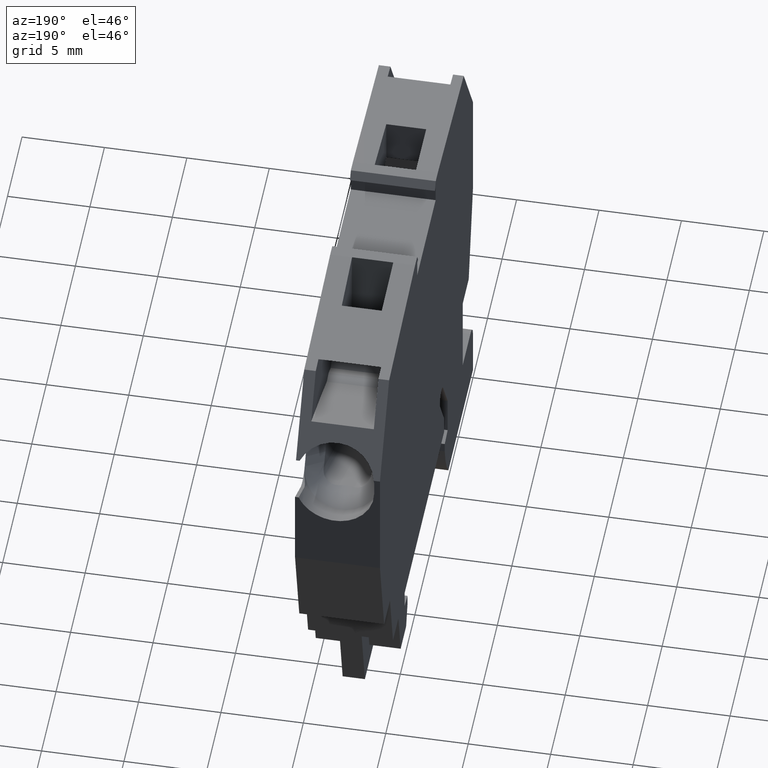
[diagram: clean part render]
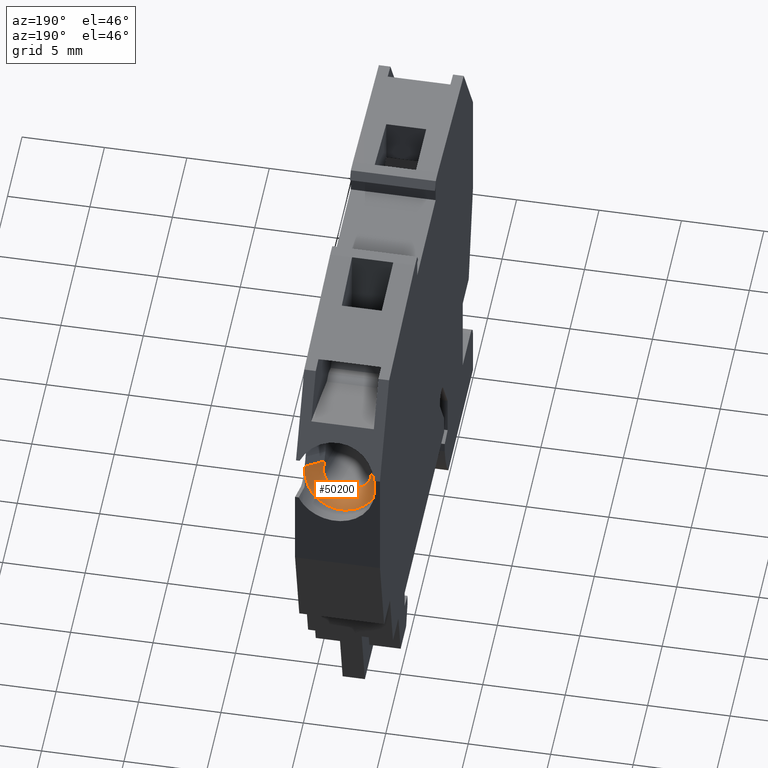
[diagram: same view with one face highlighted and labeled with its STEP entity id]
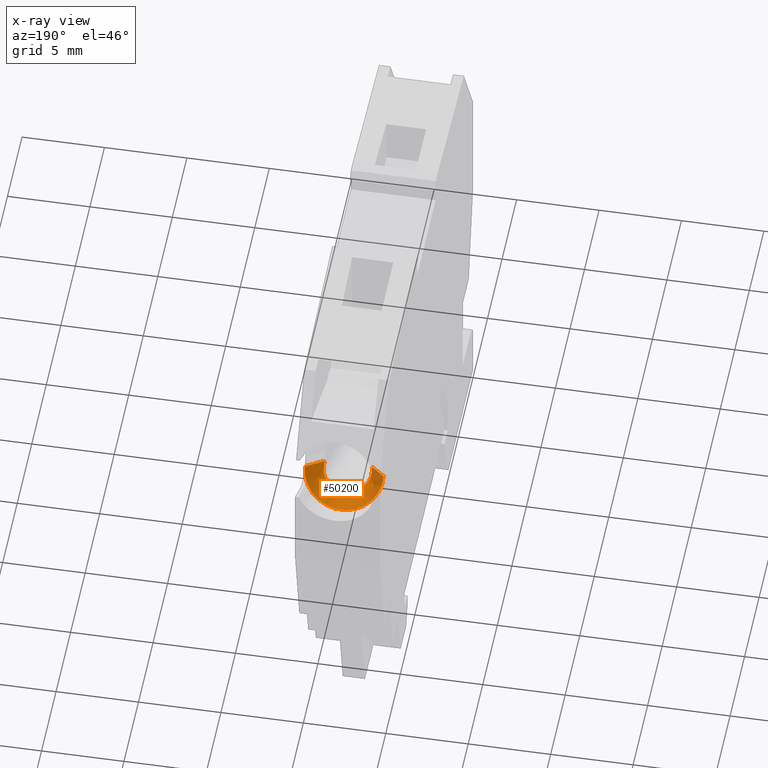
[diagram: x-ray of the same camera — body ghosted, the highlighted face saturated]
A machine part, auxiliary view. The second image highlights one B-rep face of the part: STEP entity #50200.
The next image is the same camera in x-ray: the body ghosted, the highlighted face saturated — about 4% of this face is hidden behind the body in this view.
In plain terms, the highlighted conical surface has half-angle 30 deg.
Its self-contained STEP definition (entity closure, byte-faithful):
#2400=CARTESIAN_POINT('',(66.1676224081499,109.561922686998,
4.74999999999983));
#2410=VERTEX_POINT('',#2400);
#40860=CARTESIAN_POINT('',(67.7164586426114,109.4985915737,
5.70000000000011));
#40870=DIRECTION('',(1.60798114433284E-13,2.59194779103394E-13,-1.));
#40880=DIRECTION('',(0.866025403783878,-0.500000000000971,
9.65786242782197E-15));
#40890=AXIS2_PLACEMENT_3D('',#40860,#40870,#40880);
#40900=PLANE('',#40890);
#41130=CARTESIAN_POINT('',(67.7085625380379,110.018572183899,
5.70000000000024));
#41140=VERTEX_POINT('',#41130);
#41170=CARTESIAN_POINT('',(66.1676224081496,109.561922686997,
7.14999999999986));
#41180=DIRECTION('',(-0.866025403784998,-0.499999999999031,
-2.69001113572992E-13));
#41190=DIRECTION('',(-0.499999999999029,0.866025403784999,
1.44070206015495E-13));
#41200=AXIS2_PLACEMENT_3D('',#41170,#41180,#41190);
#41210=CONICAL_SURFACE('',#41200,2.4,0.523598775598302);
#41220=CARTESIAN_POINT('',(67.5926224084562,110.384646820062,
5.70000000000032));
#41230=CARTESIAN_POINT('',(67.6007186046445,110.370623796892,
5.70000000000032));
#41240=CARTESIAN_POINT('',(67.6084086027038,110.356362917635,
5.70000000000032));
#41250=CARTESIAN_POINT('',(67.615676454891,110.341901770291,
5.70000000000031));
#41260=CARTESIAN_POINT('',(67.6229443319894,110.327440573381,
5.70000000000031));
#41270=CARTESIAN_POINT('',(67.6297897166447,110.312779934657,
5.70000000000031));
#41280=CARTESIAN_POINT('',(67.636207008798,110.297960665449,
5.70000000000031));
#41290=CARTESIAN_POINT('',(67.6426243510703,110.283141280502,
5.70000000000031));
#41300=CARTESIAN_POINT('',(67.6486133986603,110.268164036779,
5.7000000000003));
#41310=CARTESIAN_POINT('',(67.6541787174509,110.253069869291,
5.7000000000003));
#41320=CARTESIAN_POINT('',(67.65974595149,110.237970507297,
5.7000000000003));
#41330=CARTESIAN_POINT('',(67.664882199565,110.222776947638,
5.7000000000003));
#41340=CARTESIAN_POINT('',(67.6696208579757,110.207463462277,
5.70000000000029));
#41350=CARTESIAN_POINT('',(67.6791018171899,110.176824720768,
5.70000000000029));
#41360=CARTESIAN_POINT('',(67.6870032352412,110.145645398683,
5.70000000000027));
#41370=CARTESIAN_POINT('',(67.6934470988951,110.114099609553,
5.70000000000027));
#41380=CARTESIAN_POINT('',(67.6998908406898,110.082554416981,
5.70000000000026));
#41390=CARTESIAN_POINT('',(67.7048768553553,110.050648260776,
5.70000000000025));
#41400=CARTESIAN_POINT('',(67.7085625380379,110.018572183899,
5.70000000000024));
#41410=B_SPLINE_CURVE_WITH_KNOTS('',3,(#41220,#41230,#41240,#41250,
#41260,#41270,#41280,#41290,#41300,#41310,#41320,#41330,#41340,#41350,
#41360,#41370,#41380,#41390,#41400),.UNSPECIFIED.,.F.,.F.,(4,3,3,3,3,3,4
),(0.,0.0485724939354844,0.0970798381116363,0.14544061104143,
0.193596086246921,0.289991233095122,0.386737709817484),.UNSPECIFIED.);
#41420=SURFACE_CURVE('',#41410,(#41210,#40900),.CURVE_3D.);
#41430=CARTESIAN_POINT('',(67.5926224083815,110.384646820192,
5.70000000000032));
#41440=VERTEX_POINT('',#41430);
#41450=EDGE_CURVE('',#41440,#41140,#41420,.T.);
#42670=CARTESIAN_POINT('',(63.9176224081488,108.262884581324,
3.24999999999918));
#42680=DIRECTION('',(-0.750000000000405,-0.433012701891249,
-0.500000000000233));
#42690=VECTOR('',#42680,1.);
#42700=LINE('',#42670,#42690);
#42710=EDGE_CURVE('',#41440,#2410,#42700,.T.);
#45410=CARTESIAN_POINT('',(77.9049090548037,115.905435590089,
6.70000000000341));
#45420=DIRECTION('',(0.866025403784999,0.499999999999029,
2.68852641531396E-13));
#45430=DIRECTION('',(0.499999999999029,-0.866025403784999,
-1.44070206015495E-13));
#45440=AXIS2_PLACEMENT_3D('',#45410,#45420,#45430);
#45450=CYLINDRICAL_SURFACE('',#45440,1.);
#45500=CARTESIAN_POINT('',(68.2849769636717,109.196664669324,
6.69999999990775));
#45510=VERTEX_POINT('',#45500);
#45540=CARTESIAN_POINT('',(68.2849769637146,109.196664669349,
6.70000000000011));
#45550=CARTESIAN_POINT('',(68.2710354443828,109.18861552941,
6.67011839539129));
#45560=CARTESIAN_POINT('',(68.2568711103948,109.18198790838,
6.63979015915373));
#45570=CARTESIAN_POINT('',(68.2425409219465,109.176931608192,
6.60922373005235));
#45580=CARTESIAN_POINT('',(68.2353760431178,109.174403534099,
6.59394097494231));
#45590=CARTESIAN_POINT('',(68.2281701583231,109.172267787809,
6.57859971289806));
#45600=CARTESIAN_POINT('',(68.2209313524402,109.170539131735,
6.56322814203979));
#45610=CARTESIAN_POINT('',(68.2136925496556,109.168810476401,
6.54785657776088));
#45620=CARTESIAN_POINT('',(68.206420908384,109.167488934122,
6.53245489435826));
#45630=CARTESIAN_POINT('',(68.1991248242963,109.166586326532,
6.51705172104887));
#45640=CARTESIAN_POINT('',(68.1845322265404,109.164781058209,
6.48624446751845));
#45650=CARTESIAN_POINT('',(68.1698433217872,109.164654453285,
6.45543497591235));
#45660=CARTESIAN_POINT('',(68.1551240657458,109.166265981133,
6.42484398311098));
#45670=CARTESIAN_POINT('',(68.1477645293535,109.167071735025,
6.40954867714127));
#45680=CARTESIAN_POINT('',(68.1403976552807,109.168311288026,
6.39430837235709));
#45690=CARTESIAN_POINT('',(68.1330313527531,109.169988236931,
6.37914894097231));
#45700=CARTESIAN_POINT('',(68.1256665230638,109.171664850541,
6.36399254060517));
#45710=CARTESIAN_POINT('',(68.1183035759475,109.173776291929,
6.34891926981554));
#45720=CARTESIAN_POINT('',(68.1108985071686,109.176347767483,
6.33384969901194));
#45730=CARTESIAN_POINT('',(68.1034976950521,109.178917764874,
6.31878879066334));
#45740=CARTESIAN_POINT('',(68.096073883836,109.181942968339,
6.30377085854215));
#45750=CARTESIAN_POINT('',(68.0886416320471,109.185430557373,
6.28883593786096));
#45760=CARTESIAN_POINT('',(68.0812094110883,109.18891813194,
6.27390107913185));
#45770=CARTESIAN_POINT('',(68.0737689268912,109.192868038288,
6.25904961308874));
#45780=CARTESIAN_POINT('',(68.0663357272031,109.197281979891,
6.2443221759795));
#45790=CARTESIAN_POINT('',(68.0589025415778,109.201695913144,
6.22959476673323));
#45800=CARTESIAN_POINT('',(68.0514768319848,109.206573780781,
6.21499178626609));
#45810=CARTESIAN_POINT('',(68.0440746197244,109.211911719396,
6.2005530905005));
#45820=CARTESIAN_POINT('',(68.0366724043852,109.217249660232,
6.18611438872941));
#45830=CARTESIAN_POINT('',(68.0292938861803,109.223047522861,
6.17184037533121));
#45840=CARTESIAN_POINT('',(68.0219550127317,109.229296164084,
6.15776878736497));
#45850=CARTESIAN_POINT('',(68.0146161180475,109.235544823388,
6.14369715868146));
#45860=CARTESIAN_POINT('',(68.007317068309,109.242244065727,
6.12982834493294));
#45870=CARTESIAN_POINT('',(68.0000731525457,109.249380176642,
6.11619669023116));
#45880=CARTESIAN_POINT('',(67.9928291959517,109.256516327781,
6.10256495869401));
#45890=CARTESIAN_POINT('',(67.98564056384,109.26408911206,
6.0891707404147));
#45900=CARTESIAN_POINT('',(67.9785212700814,109.272081419885,
6.07604382089082));
#45910=CARTESIAN_POINT('',(67.9714063331272,109.280068836646,
6.06292493466696));
#45920=CARTESIAN_POINT('',(67.9643485427218,109.288487068816,
6.05005018387187));
#45930=CARTESIAN_POINT('',(67.95732546682,109.29737133613,
6.03738447186082));
#45940=CARTESIAN_POINT('',(67.950305616365,109.306251523218,
6.02472457675676));
#45950=CARTESIAN_POINT('',(67.9433346434435,109.315581331186,
6.01229969851804));
#45960=CARTESIAN_POINT('',(67.936431308676,109.325343589659,
6.00014807833785));
#45970=CARTESIAN_POINT('',(67.9295280082379,109.335105799585,
5.98799651858597));
#45980=CARTESIAN_POINT('',(67.9226925992329,109.345300141756,
5.97611868204281));
#45990=CARTESIAN_POINT('',(67.9159441722676,109.355902510532,
5.96455054479888));
#46000=CARTESIAN_POINT('',(67.9091957568448,109.366504861174,
5.95298242734104));
#46010=CARTESIAN_POINT('',(67.9025345786119,109.377514851341,
5.94172445430914));
#46020=CARTESIAN_POINT('',(67.8959791868537,109.388902276996,
5.93080860115712));
#46030=CARTESIAN_POINT('',(67.8894237854553,109.400289719397,
5.91989273195248));
#46040=CARTESIAN_POINT('',(67.8829744158693,109.412054158118,
5.90931938659468));
#46050=CARTESIAN_POINT('',(67.876648296186,109.42416058564,
5.89911517949705));
#46060=CARTESIAN_POINT('',(67.8703221464681,109.436267070641,
5.88891092395281));
#46070=CARTESIAN_POINT('',(67.8641194708077,109.44871507361,
5.87907615097069));
#46080=CARTESIAN_POINT('',(67.8580554539463,109.461466529538,
5.86963114297858));
#46090=CARTESIAN_POINT('',(67.8519899874015,109.474221033869,
5.86018387703239));
#46100=CARTESIAN_POINT('',(67.8460692608937,109.487265274901,
5.85113557068846));
#46110=CARTESIAN_POINT('',(67.8402891958102,109.500598502552,
5.84247464060311));
#46120=CARTESIAN_POINT('',(67.8345041165439,109.513943296725,
5.83380619719642));
#46130=CARTESIAN_POINT('',(67.8288403446563,109.52762389576,
5.82549676413458));
#46140=CARTESIAN_POINT('',(67.8233124059143,109.541610661991,
5.81756573881434));
#46150=CARTESIAN_POINT('',(67.817784500158,109.555597344762,
5.80963476081926));
#46160=CARTESIAN_POINT('',(67.8123926055086,109.569889813334,
5.80208245823465));
#46170=CARTESIAN_POINT('',(67.8071509932,109.584453045459,
5.79492521248201));
#46180=CARTESIAN_POINT('',(67.801909396825,109.599016233315,
5.78776798848627));
#46190=CARTESIAN_POINT('',(67.7968182519836,109.613849757402,
5.78100605332336));
#46200=CARTESIAN_POINT('',(67.7918907785676,109.628914387464,
5.77465152957541));
#46210=CARTESIAN_POINT('',(67.786963307053,109.643979011714,
5.76829700827956));
#46220=CARTESIAN_POINT('',(67.7821996596424,109.659274292128,
5.76235008579544));
#46230=CARTESIAN_POINT('',(67.7776113735942,109.674758140865,
5.75681784125185));
#46240=CARTESIAN_POINT('',(67.7730230778883,109.690242022194,
5.75128558506354));
#46250=CARTESIAN_POINT('',(67.7686102743978,109.705914020219,
5.74616814554313));
#46260=CARTESIAN_POINT('',(67.764382347293,109.721730665595,
5.74146719124078));
#46270=CARTESIAN_POINT('',(67.7601544008921,109.737547383157,
5.73676621548354));
#46280=CARTESIAN_POINT('',(67.7561114365198,109.753508312336,
5.73248181450501));
#46290=CARTESIAN_POINT('',(67.7522603700279,109.769570181227,
5.72861025516806));
#46300=CARTESIAN_POINT('',(67.7484075585454,109.785639328053,
5.72473694155487));
#46310=CARTESIAN_POINT('',(67.7447554354965,109.801767753892,
5.7212840987415));
#46320=CARTESIAN_POINT('',(67.7412756061474,109.818071133923,
5.71821504595548));
#46330=CARTESIAN_POINT('',(67.7377967939819,109.834369748337,
5.71514689027967));
#46340=CARTESIAN_POINT('',(67.7344983323998,109.850810963951,
5.71247092404832));
#46350=CARTESIAN_POINT('',(67.7313866095249,109.867365861737,
5.710185131831));
#46360=CARTESIAN_POINT('',(67.7282748961632,109.883920708911,
5.70789934660188));
#46370=CARTESIAN_POINT('',(67.7253499817376,109.900589001974,
5.70600378789775));
#46380=CARTESIAN_POINT('',(67.722617365807,109.917339771507,
5.70449388251432));
#46390=CARTESIAN_POINT('',(67.7198847541643,109.934090514757,
5.70298397950014));
#46400=CARTESIAN_POINT('',(67.7173444921437,109.950923487598,
5.70185976034458));
#46410=CARTESIAN_POINT('',(67.7150008328758,109.967806487849,
5.70111376297826));
#46420=CARTESIAN_POINT('',(67.7126571741285,109.98468948435,
5.70036776577764));
#46430=CARTESIAN_POINT('',(67.7105101588074,110.001622262024,
5.70000000000026));
#46440=CARTESIAN_POINT('',(67.708562538038,110.018572183899,
5.70000000000026));
#46450=B_SPLINE_CURVE_WITH_KNOTS('',3,(#45540,#45550,#45560,#45570,
#45580,#45590,#45600,#45610,#45620,#45630,#45640,#45650,#45660,#45670,
#45680,#45690,#45700,#45710,#45720,#45730,#45740,#45750,#45760,#45770,
#45780,#45790,#45800,#45810,#45820,#45830,#45840,#45850,#45860,#45870,
#45880,#45890,#45900,#45910,#45920,#45930,#45940,#45950,#45960,#45970,
#45980,#45990,#46000,#46010,#46020,#46030,#46040,#46050,#46060,#46070,
#46080,#46090,#46100,#46110,#46120,#46130,#46140,#46150,#46160,#46170,
#46180,#46190,#46200,#46210,#46220,#46230,#46240,#46250,#46260,#46270,
#46280,#46290,#46300,#46310,#46320,#46330,#46340,#46350,#46360,#46370,
#46380,#46390,#46400,#46410,#46420,#46430,#46440),.UNSPECIFIED.,.F.,.F.,
(4,3,3,3,3,3,3,3,3,3,3,3,3,3,3,3,3,3,3,3,3,3,3,3,3,3,3,3,3,3,4),(0.,
0.10216509776944,0.153389318137982,0.204613592134819,0.306825292376315,
0.357722846119892,0.408545399259035,0.459582105686328,0.510769603152525,
0.562014338557316,0.613226822288381,0.664326369053144,0.715246229576191,
0.766080732605549,0.817133122267676,0.868334264892156,0.919587690936333,
0.970794245650806,1.0218582146281,1.07270306009201,1.12360910151287,
1.1746973850949,1.22589751237817,1.2771256011719,1.32828970680075,
1.37929487022838,1.43010526614777,1.48102529533365,1.53208671563312,
1.58324226571943,1.63443197726706),.UNSPECIFIED.);
#46460=SURFACE_CURVE('',#46450,(#45450,#41210),.CURVE_3D.);
#46470=EDGE_CURVE('',#45510,#41140,#46460,.T.);
#46610=CARTESIAN_POINT('',(69.2026733339678,109.726496915747,
7.75911268368277));
#46620=DIRECTION('',(0.499999999999029,-0.866025403784999,
-1.44070206015495E-13));
#46630=DIRECTION('',(0.866025403784999,0.49999999999903,
2.68852641531396E-13));
#46640=AXIS2_PLACEMENT_3D('',#46610,#46620,#46630);
#46650=PLANE('',#46640);
#46700=CARTESIAN_POINT('',(68.2849769637144,109.196664669349,
7.59999999999999));
#46710=VERTEX_POINT('',#46700);
#46740=CARTESIAN_POINT('',(68.2849769637145,109.196664669349,
7.60000000000003));
#46750=CARTESIAN_POINT('',(68.3011152809742,109.205982131163,
7.56540988080795));
#46760=CARTESIAN_POINT('',(68.3159269579666,109.214533656865,
7.53006488371484));
#46770=CARTESIAN_POINT('',(68.3290690562709,109.222121250859,
7.49396162904712));
#46780=CARTESIAN_POINT('',(68.3356429605557,109.225916696267,
7.47590215824874));
#46790=CARTESIAN_POINT('',(68.3417872053575,109.229464077654,
7.45769096007739));
#46800=CARTESIAN_POINT('',(68.3474950743767,109.232759517369,
7.43920329494462));
#46810=CARTESIAN_POINT('',(68.3532022324085,109.236054546595,
7.42071793268486));
#46820=CARTESIAN_POINT('',(68.3584616517219,109.239091073753,
7.40198276997397));
#46830=CARTESIAN_POINT('',(68.3632084633231,109.241831646709,
7.38304525319734));
#46840=CARTESIAN_POINT('',(68.3679552399537,109.244572199474,
7.36410787593665));
#46850=CARTESIAN_POINT('',(68.3721888147427,109.247016455019,
7.34496928466755));
#46860=CARTESIAN_POINT('',(68.3758547625185,109.249132990954,
7.32568620029887));
#46870=CARTESIAN_POINT('',(68.3795207065472,109.251249524726,
7.30640313564011));
#46880=CARTESIAN_POINT('',(68.3826184563416,109.253038011401,
7.28697730628862));
#46890=CARTESIAN_POINT('',(68.3851090805166,109.254475973939,
7.26747137066311));
#46900=CARTESIAN_POINT('',(68.3875997225677,109.255913946798,
7.24796529503659));
#46910=CARTESIAN_POINT('',(68.3894828640027,109.257001179012,
7.22838135151973));
#46920=CARTESIAN_POINT('',(68.390738531431,109.25772613894,
7.2087822363718));
#46930=CARTESIAN_POINT('',(68.3919942211834,109.258451111756,
7.18918277277701));
#46940=CARTESIAN_POINT('',(68.3926224081491,109.25881379567,
7.16957059964488));
#46950=CARTESIAN_POINT('',(68.3926224081491,109.25881379567,
7.1500000000001));
#46960=CARTESIAN_POINT('',(68.3926224081491,109.25881379567,
7.13042940034587));
#46970=CARTESIAN_POINT('',(68.3919942211828,109.258451111756,
7.11081722721381));
#46980=CARTESIAN_POINT('',(68.390738531431,109.25772613894,
7.0912177636284));
#46990=CARTESIAN_POINT('',(68.3894828640027,109.257001179012,
7.07161864848044));
#47000=CARTESIAN_POINT('',(68.3875997225677,109.255913946798,
7.05203470496366));
#47010=CARTESIAN_POINT('',(68.3851090805166,109.254475973939,
7.0325286293371));
#47020=CARTESIAN_POINT('',(68.3826184563416,109.253038011401,
7.0130226937116));
#47030=CARTESIAN_POINT('',(68.3795207065473,109.251249524726,
6.99359686436005));
#47040=CARTESIAN_POINT('',(68.3758547625186,109.249132990954,
6.97431379970132));
#47050=CARTESIAN_POINT('',(68.3721888147428,109.247016455019,
6.95503071533272));
#47060=CARTESIAN_POINT('',(68.3679552399537,109.244572199474,
6.93589212406345));
#47070=CARTESIAN_POINT('',(68.3632084633232,109.241831646709,
6.91695474680284));
#47080=CARTESIAN_POINT('',(68.358461651722,109.239091073753,
6.89801723002621));
#47090=CARTESIAN_POINT('',(68.3532022324085,109.236054546595,
6.87928206731534));
#47100=CARTESIAN_POINT('',(68.3474950743768,109.232759517369,
6.86079670505556));
#47110=CARTESIAN_POINT('',(68.3417872053575,109.229464077654,
6.84230903992282));
#47120=CARTESIAN_POINT('',(68.3356429605558,109.225916696267,
6.8240978417514));
#47130=CARTESIAN_POINT('',(68.329069056271,109.222121250859,
6.80603837095306));
#47140=CARTESIAN_POINT('',(68.3159269579667,109.214533656865,
6.76993511628532));
#47150=CARTESIAN_POINT('',(68.3011152809743,109.205982131163,
6.73459011919219));
#47160=CARTESIAN_POINT('',(68.2849769637146,109.196664669349,
6.70000000000012));
#47170=B_SPLINE_CURVE_WITH_KNOTS('',3,(#46740,#46750,#46760,#46770,
#46780,#46790,#46800,#46810,#46820,#46830,#46840,#46850,#46860,#46870,
#46880,#46890,#46900,#46910,#46920,#46930,#46940,#46950,#46960,#46970,
#46980,#46990,#47000,#47010,#47020,#47030,#47040,#47050,#47060,#47070,
#47080,#47090,#47100,#47110,#47120,#47130,#47140,#47150,#47160),
.UNSPECIFIED.,.F.,.F.,(4,3,3,3,3,3,3,3,3,3,3,3,3,3,4),(0.,
0.117673158967789,0.17642731171236,0.235452815516167,0.294652119403202,
0.353851572712582,0.412912541845712,0.471748381648566,0.530584221451421,
0.589645190584549,0.648844643893925,0.708043947780957,0.767069451584783,
0.825823604329341,0.943496763297132),.UNSPECIFIED.);
#47180=SURFACE_CURVE('',#47170,(#41210,#46650),.CURVE_3D.);
#47190=EDGE_CURVE('',#46710,#45510,#47180,.T.);
#47330=CARTESIAN_POINT('',(77.9049090548035,115.905435590089,
7.60000000000331));
#47340=DIRECTION('',(-0.866025403784999,-0.499999999999029,
-2.68852641531396E-13));
#47350=DIRECTION('',(-0.499999999999029,0.866025403784999,
1.44070206015495E-13));
#47360=AXIS2_PLACEMENT_3D('',#47330,#47340,#47350);
#47370=CYLINDRICAL_SURFACE('',#47360,1.);
#47440=CARTESIAN_POINT('',(67.7085625380375,110.018572183898,
8.60000000000015));
#47450=VERTEX_POINT('',#47440);
#47480=CARTESIAN_POINT('',(67.7085625380376,110.018572183899,
8.60000000000013));
#47490=CARTESIAN_POINT('',(67.7124612698809,109.984641964426,
8.60000000000012));
#47500=CARTESIAN_POINT('',(67.7171522972694,109.950848309798,
8.59852406593061));
#47510=CARTESIAN_POINT('',(67.722604346939,109.917419585914,
8.59551330894095));
#47520=CARTESIAN_POINT('',(67.725330337806,109.900705432242,
8.59400794920399));
#47530=CARTESIAN_POINT('',(67.7282462005452,109.88408287822,
8.59211956120043));
#47540=CARTESIAN_POINT('',(67.7313466680322,109.867578418113,
8.58984419427751));
#47550=CARTESIAN_POINT('',(67.7344466549218,109.85107651633,
8.58756918005471));
#47560=CARTESIAN_POINT('',(67.7377291232685,109.834698260005,
8.5849100859447));
#47570=CARTESIAN_POINT('',(67.741215691737,109.818351937126,
8.58183777280773));
#47580=CARTESIAN_POINT('',(67.7447002322084,109.802015122248,
8.57876724671216));
#47590=CARTESIAN_POINT('',(67.7483804589225,109.785753872512,
8.57528993180353));
#47600=CARTESIAN_POINT('',(67.7522506907297,109.769610553138,
8.5713994751743));
#47610=CARTESIAN_POINT('',(67.7561209064071,109.753467301044,
8.56750903475909));
#47620=CARTESIAN_POINT('',(67.7601810379657,109.737442387962,
8.56320551545373));
#47630=CARTESIAN_POINT('',(67.7644230034099,109.721578597093,
8.55848759747854));
#47640=CARTESIAN_POINT('',(67.7686649607302,109.705714836606,
8.55376968853885));
#47650=CARTESIAN_POINT('',(67.7730886395134,109.690012624977,
8.54863748735723));
#47660=CARTESIAN_POINT('',(67.7776838231367,109.674513713955,
8.54309478713138));
#47670=CARTESIAN_POINT('',(67.7822790085419,109.659014796923,
8.53755208475623));
#47680=CARTESIAN_POINT('',(67.7870455655802,109.643719609449,
8.53159903424633));
#47690=CARTESIAN_POINT('',(67.7919715591437,109.628667484662,
8.52524427734519));
#47700=CARTESIAN_POINT('',(67.7968975667929,109.613615316833,
8.51888950227279));
#47710=CARTESIAN_POINT('',(67.8019828611966,109.598806623878,
8.51213321402498));
#47720=CARTESIAN_POINT('',(67.8072143621793,109.584277015352,
8.5049882500661));
#47730=CARTESIAN_POINT('',(67.8124458924364,109.569747325522,
8.49784324612551));
#47740=CARTESIAN_POINT('',(67.8178234694954,109.55549709315,
8.49030979544414));
#47750=CARTESIAN_POINT('',(67.8233336051399,109.541557026986,
8.48240384540645));
#47760=CARTESIAN_POINT('',(67.8343351186433,109.51372434989,
8.46661885902706));
#47770=CARTESIAN_POINT('',(67.8459612501642,109.486886733736,
8.44920955906578));
#47780=CARTESIAN_POINT('',(67.8581439210164,109.461280542545,
8.43023105284703));
#47790=CARTESIAN_POINT('',(67.8642333302621,109.448481495499,
8.42074480039553));
#47800=CARTESIAN_POINT('',(67.8704575791498,109.435998744079,
8.41087331407144));
#47810=CARTESIAN_POINT('',(67.8768001362029,109.423870117045,
8.40063986567904));
#47820=CARTESIAN_POINT('',(67.8831426821751,109.411741511201,
8.39040643516523));
#47830=CARTESIAN_POINT('',(67.8896032994493,109.399967497323,
8.37981141657932));
#47840=CARTESIAN_POINT('',(67.8961639085303,109.388581543767,
8.36888376167968));
#47850=CARTESIAN_POINT('',(67.9027245270537,109.377195573824,
8.35795609105244));
#47860=CARTESIAN_POINT('',(67.9093848869535,109.366198086047,
8.34669620557515));
#47870=CARTESIAN_POINT('',(67.9161261349225,109.355616763126,
8.33513749640715));
#47880=CARTESIAN_POINT('',(67.9228674147176,109.345035390249,
8.32357873266928));
#47890=CARTESIAN_POINT('',(67.9296893301282,109.334870538913,
8.31172159455688));
#47900=CARTESIAN_POINT('',(67.9365731302611,109.325143108773,
8.29960225804238));
#47910=CARTESIAN_POINT('',(67.9434584279207,109.315413562493,
8.28748028504372));
#47920=CARTESIAN_POINT('',(67.9503990191102,109.306130001524,
8.27510794289442));
#47930=CARTESIAN_POINT('',(67.9573954277242,109.29728285174,
8.26248935283145));
#47940=CARTESIAN_POINT('',(67.9643979660389,109.288427950782,
8.24985970735646));
#47950=CARTESIAN_POINT('',(67.9714817675155,109.279978999958,
8.2369374191359));
#47960=CARTESIAN_POINT('',(67.9786323622511,109.271956745207,
8.2237513303573));
#47970=CARTESIAN_POINT('',(67.9857829139768,109.26393453871,
8.21056532089116));
#47980=CARTESIAN_POINT('',(67.9930000570791,109.256339306159,
8.19711587578857));
#47990=CARTESIAN_POINT('',(68.0002678576319,109.249188487352,
8.18343688020956));
#48000=CARTESIAN_POINT('',(68.007535635855,109.242037690515,
8.16975792665804));
#48010=CARTESIAN_POINT('',(68.0148538572933,109.235331545146,
8.15584982935902));
#48020=CARTESIAN_POINT('',(68.0222057778664,109.229082839941,
8.14175034535701));
#48030=CARTESIAN_POINT('',(68.0295576954644,109.222834137266,
8.12765086706057));
#48040=CARTESIAN_POINT('',(68.0369430966052,109.217043063274,
8.11336042831298));
#48050=CARTESIAN_POINT('',(68.0443450617046,109.211716908277,
8.09891933492867));
#48060=CARTESIAN_POINT('',(68.0517470423423,109.206390742098,
8.0844782112296));
#48070=CARTESIAN_POINT('',(68.0591653789004,109.201529630286,
8.06988685902282));
#48080=CARTESIAN_POINT('',(68.0665835836269,109.197134972567,
8.05518670424521));
#48090=CARTESIAN_POINT('',(68.0740018222589,109.192740294762,
8.0404864822792));
#48100=CARTESIAN_POINT('',(68.0814197355641,109.188812153066,
8.02567786693383));
#48110=CARTESIAN_POINT('',(68.0888218523024,109.185346078666,
8.01080189455645));
#48120=CARTESIAN_POINT('',(68.0962273962596,109.181878399456,
7.99591903452567));
#48130=CARTESIAN_POINT('',(68.1035981017649,109.178879199739,
7.98100762030704));
#48140=CARTESIAN_POINT('',(68.11099106347,109.176315649784,
7.96596194104154));
#48150=CARTESIAN_POINT('',(68.118381950807,109.173752819128,
7.95092048339643));
#48160=CARTESIAN_POINT('',(68.1257803416407,109.171633212399,
7.93577426971687));
#48170=CARTESIAN_POINT('',(68.1331768966494,109.16995516057,
7.92055152761186));
#48180=CARTESIAN_POINT('',(68.1405734288939,109.168277113906,
7.9053288323574));
#48190=CARTESIAN_POINT('',(68.147968020337,109.167040671486,
7.89002983172228));
#48200=CARTESIAN_POINT('',(68.1553509105824,109.16624128224,
7.87468454361749));
#48210=CARTESIAN_POINT('',(68.1627337891713,109.165441894256,
7.85933927974084));
#48220=CARTESIAN_POINT('',(68.1701048605392,109.165079583999,
7.84394796007178));
#48230=CARTESIAN_POINT('',(68.1774542744246,109.165146542565,
7.82854157461494));
#48240=CARTESIAN_POINT('',(68.1848036866755,109.165213501116,
7.81313519258463));
#48250=CARTESIAN_POINT('',(68.1921313386812,109.16570972975,
7.7977139745484));
#48260=CARTESIAN_POINT('',(68.1994275768997,109.16662402247,
7.78230909218904));
#48270=CARTESIAN_POINT('',(68.2067238225832,109.167538316125,
7.76690419406851));
#48280=CARTESIAN_POINT('',(68.2139885578756,109.16887065447,
7.75151585178406));
#48290=CARTESIAN_POINT('',(68.2212125700023,109.17060649625,
7.73617467387172));
#48300=CARTESIAN_POINT('',(68.2284365980591,109.172342341859,
7.72083346212953));
#48310=CARTESIAN_POINT('',(68.2356198143088,109.17448165396,
7.70553961987645));
#48320=CARTESIAN_POINT('',(68.2427536559079,109.177006789251,
7.6903224978739));
#48330=CARTESIAN_POINT('',(68.249887741993,109.179532011082,
7.67510485436065));
#48340=CARTESIAN_POINT('',(68.2569714279165,109.182442594419,
7.65996613934278));
#48350=CARTESIAN_POINT('',(68.2639996701075,109.18571941089,
7.64492805560933));
#48360=CARTESIAN_POINT('',(68.2710306283035,109.18899749366,
7.62988416053487));
#48370=CARTESIAN_POINT('',(68.2780248967013,109.192650891587,
7.61490073734129));
#48380=CARTESIAN_POINT('',(68.2849769637145,109.196664669349,
7.60000000000003));
#48390=B_SPLINE_CURVE_WITH_KNOTS('',3,(#47480,#47490,#47500,#47510,
#47520,#47530,#47540,#47550,#47560,#47570,#47580,#47590,#47600,#47610,
#47620,#47630,#47640,#47650,#47660,#47670,#47680,#47690,#47700,#47710,
#47720,#47730,#47740,#47750,#47760,#47770,#47780,#47790,#47800,#47810,
#47820,#47830,#47840,#47850,#47860,#47870,#47880,#47890,#47900,#47910,
#47920,#47930,#47940,#47950,#47960,#47970,#47980,#47990,#48000,#48010,
#48020,#48030,#48040,#48050,#48060,#48070,#48080,#48090,#48100,#48110,
#48120,#48130,#48140,#48150,#48160,#48170,#48180,#48190,#48200,#48210,
#48220,#48230,#48240,#48250,#48260,#48270,#48280,#48290,#48300,#48310,
#48320,#48330,#48340,#48350,#48360,#48370,#48380),.UNSPECIFIED.,.F.,.F.,
(4,3,3,3,3,3,3,3,3,3,3,3,3,3,3,3,3,3,3,3,3,3,3,3,3,3,3,3,3,3,4),(0.,
0.102264070384905,0.153188423317597,0.20403476644832,0.255094463077596,
0.306306041205919,0.357575867614054,0.408814359620483,0.45994072260575,
0.510888074386167,0.612821546508465,0.664046892390565,0.715325546840969,
0.766558212462014,0.817649030248556,0.868520469062191,0.919450014250043,
0.970562670224488,1.02178790573398,1.0730416564497,1.12423177549634,
1.17526310692883,1.22609887141672,1.2770437677385,1.32813045295034,
1.37931147594095,1.43052663181962,1.48170615391488,1.53277363197967,
1.58365005421986,1.63443195844258),.UNSPECIFIED.);
#48400=SURFACE_CURVE('',#48390,(#47370,#41210),.CURVE_3D.);
#48410=EDGE_CURVE('',#47450,#46710,#48400,.T.);
#48530=CARTESIAN_POINT('',(67.8092251139941,109.455880206533,
8.60000000000002));
#48540=DIRECTION('',(-1.60798114433284E-13,-2.59194779103394E-13,1.));
#48550=DIRECTION('',(-0.866025403783878,0.500000000000971,
-9.65786242782197E-15));
#48560=AXIS2_PLACEMENT_3D('',#48530,#48540,#48550);
#48570=PLANE('',#48560);
#49360=CARTESIAN_POINT('',(67.5926224082658,110.384646820391,
8.60000000000022));
#49370=VERTEX_POINT('',#49360);
#49400=CARTESIAN_POINT('',(67.7085625380375,110.018572183898,
8.60000000000015));
#49410=CARTESIAN_POINT('',(67.7048770031357,110.050646974656,
8.60000000000015));
#49420=CARTESIAN_POINT('',(67.699887523615,110.082580321105,
8.60000000000016));
#49430=CARTESIAN_POINT('',(67.6934346168633,110.114160705697,
8.60000000000017));
#49440=CARTESIAN_POINT('',(67.6902082187199,110.129950627686,
8.60000000000017));
#49450=CARTESIAN_POINT('',(67.6866166122909,110.1456517811,
8.59999999999492));
#49460=CARTESIAN_POINT('',(67.6826438491435,110.161238405716,
8.59999999999493));
#49470=CARTESIAN_POINT('',(67.678671075972,110.176825069661,
8.59999999999493));
#49480=CARTESIAN_POINT('',(67.6743171837841,110.192296943782,
8.60000000000003));
#49490=CARTESIAN_POINT('',(67.6695692850082,110.207630070358,
8.60000000000003));
#49500=CARTESIAN_POINT('',(67.664819658059,110.222968777993,
8.60000000000003));
#49510=CARTESIAN_POINT('',(67.6596845975903,110.238144453539,
8.6000000000002));
#49520=CARTESIAN_POINT('',(67.6541285653441,110.253205856815,
8.6000000000002));
#49530=CARTESIAN_POINT('',(67.6485714336877,110.268270240394,
8.6000000000002));
#49540=CARTESIAN_POINT('',(67.6425910648446,110.283221167631,
8.6000000000002));
#49550=CARTESIAN_POINT('',(67.6361815331696,110.298019489573,
8.60000000000021));
#49560=CARTESIAN_POINT('',(67.6297720653938,110.312817663984,
8.60000000000021));
#49570=CARTESIAN_POINT('',(67.6229336146207,110.327462473204,
8.60000000000022));
#49580=CARTESIAN_POINT('',(67.6156704100557,110.34191379771,
8.60000000000022));
#49590=CARTESIAN_POINT('',(67.6084072440509,110.356365045495,
8.60000000000022));
#49600=CARTESIAN_POINT('',(67.6007196515193,110.370621983671,
8.60000000000022));
#49610=CARTESIAN_POINT('',(67.5926224081911,110.38464682052,
8.60000000000023));
#49620=B_SPLINE_CURVE_WITH_KNOTS('',3,(#49400,#49410,#49420,#49430,
#49440,#49450,#49460,#49470,#49480,#49490,#49500,#49510,#49520,#49530,
#49540,#49550,#49560,#49570,#49580,#49590,#49600,#49610),.UNSPECIFIED.,
.F.,.F.,(4,3,3,3,3,3,3,4),(0.,0.096808834840262,0.145112029852945,
0.19331606296044,0.241442071349876,0.289722007187157,0.338178708682971,
0.386737742139631),.UNSPECIFIED.);
#49630=SURFACE_CURVE('',#49620,(#41210,#48570),.CURVE_3D.);
#49640=EDGE_CURVE('',#47450,#49370,#49630,.T.);
#49970=ORIENTED_EDGE('',*,*,#41450,.F.);
#49980=ORIENTED_EDGE('',*,*,#46470,.T.);
#49990=ORIENTED_EDGE('',*,*,#47190,.T.);
#50000=ORIENTED_EDGE('',*,*,#48410,.T.);
#50010=ORIENTED_EDGE('',*,*,#49640,.F.);
#50020=CARTESIAN_POINT('',(66.1676224081492,109.561922686997,
9.54999999999988));
#50030=DIRECTION('',(-0.750000000000572,-0.433012701891502,
0.499999999999764));
#50040=VECTOR('',#50030,4.80000000000002);
#50050=LINE('',#50020,#50040);
#50060=CARTESIAN_POINT('',(66.1676224081488,109.561922686997,
9.54999999999986));
#50070=VERTEX_POINT('',#50060);
#50080=EDGE_CURVE('',#49370,#50070,#50050,.T.);
#50090=ORIENTED_EDGE('',*,*,#50080,.F.);
#50100=CARTESIAN_POINT('',(66.1676224081496,109.561922686997,
7.14999999999986));
#50110=DIRECTION('',(0.866025403784999,0.49999999999903,
2.68852641531396E-13));
#50120=DIRECTION('',(-0.499999999999029,0.866025403784999,
1.44070206015495E-13));
#50130=AXIS2_PLACEMENT_3D('',#50100,#50110,#50120);
#50140=CIRCLE('',#50130,2.4);
#50150=EDGE_CURVE('',#50070,#2410,#50140,.T.);
#50160=ORIENTED_EDGE('',*,*,#50150,.F.);
#50170=ORIENTED_EDGE('',*,*,#42710,.T.);
#50180=EDGE_LOOP('',(#50170,#50160,#50090,#50010,#50000,#49990,#49980,
#49970));
#50190=FACE_OUTER_BOUND('',#50180,.T.);
#50200=ADVANCED_FACE('',(#50190),#41210,.F.);